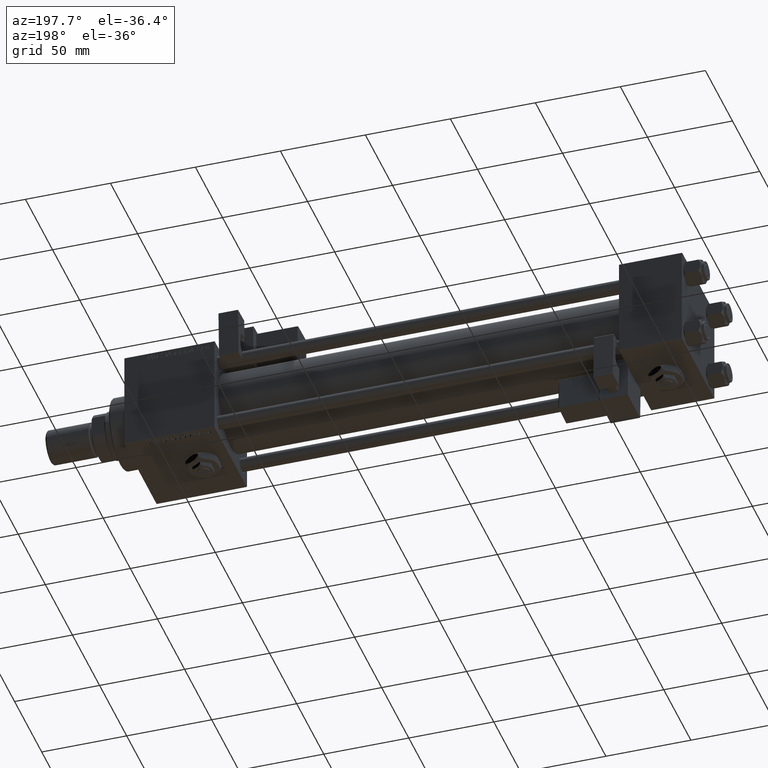
[diagram: clean part render]
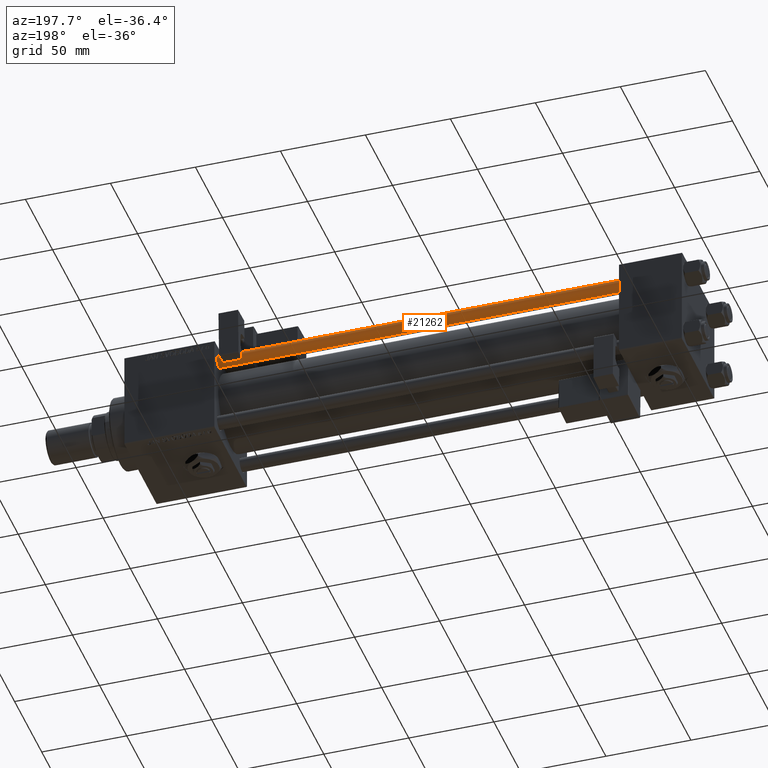
[diagram: same view with one face highlighted and labeled with its STEP entity id]
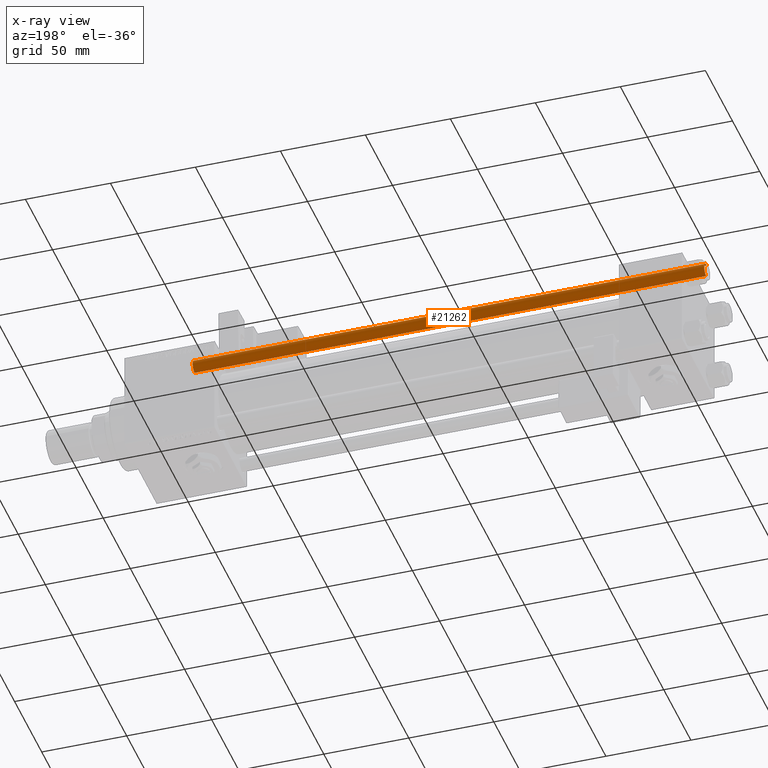
[diagram: x-ray of the same camera — body ghosted, the highlighted face saturated]
A machine part, auxiliary view. The second image highlights one B-rep face of the part: STEP entity #21262.
The next image is the same camera in x-ray: the body ghosted, the highlighted face saturated — about 0% of this face is hidden behind the body in this view.
In plain terms, the highlighted cylindrical surface (edge-blend (fillet) strip) has radius 4 mm, axis along (-1, 0, 0).
Its self-contained STEP definition (entity closure, byte-faithful):
#837 = DIRECTION ( 'NONE',  ( -0.000000000000000000, -0.000000000000000000, -1.000000000000000000 ) ) ;
#1104 = DIRECTION ( 'NONE',  ( -1.000000000000000000, 0.000000000000000000, 0.000000000000000000 ) ) ;
#2468 = LINE ( 'NONE', #23309, #20043 ) ;
#4235 = CARTESIAN_POINT ( 'NONE',  ( -4.000000000000000000, 0.000000000000000000, 0.5000000000000559552 ) ) ;
#4776 = VERTEX_POINT ( 'NONE', #44739 ) ;
#7074 = VECTOR ( 'NONE', #37292, 1000.000000000000000 ) ;
#8111 = VERTEX_POINT ( 'NONE', #17181 ) ;
#9729 = CYLINDRICAL_SURFACE ( 'NONE', #37737, 4.000000000000000000 ) ;
#14756 = ORIENTED_EDGE ( 'NONE', *, *, #48598, .T. ) ;
#17181 = CARTESIAN_POINT ( 'NONE',  ( 4.000000000000000000, 4.898587196589412829E-16, 0.5000000000000559552 ) ) ;
#20043 = VECTOR ( 'NONE', #40232, 1000.000000000000000 ) ;
#21262 = ADVANCED_FACE ( 'NONE', ( #44409 ), #9729, .T. ) ;
#21586 = ORIENTED_EDGE ( 'NONE', *, *, #37490, .T. ) ;
#23309 = CARTESIAN_POINT ( 'NONE',  ( -4.000000000000000000, 0.000000000000000000, 302.0000000000000000 ) ) ;
#23908 = DIRECTION ( 'NONE',  ( -0.000000000000000000, -0.000000000000000000, 1.000000000000000000 ) ) ;
#26616 = ORIENTED_EDGE ( 'NONE', *, *, #42270, .F. ) ;
#28378 = CARTESIAN_POINT ( 'NONE',  ( 0.000000000000000000, 0.000000000000000000, 301.4999999999999432 ) ) ;
#33130 = LINE ( 'NONE', #50026, #7074 ) ;
#34055 = CIRCLE ( 'NONE', #38482, 4.000000000000000000 ) ;
#34962 = CARTESIAN_POINT ( 'NONE',  ( -4.000000000000000000, 0.000000000000000000, 301.4999999999999432 ) ) ;
#35016 = EDGE_LOOP ( 'NONE', ( #21586, #42730, #14756, #26616 ) ) ;
#36145 = DIRECTION ( 'NONE',  ( 0.000000000000000000, 0.000000000000000000, -1.000000000000000000 ) ) ;
#37292 = DIRECTION ( 'NONE',  ( -0.000000000000000000, -0.000000000000000000, -1.000000000000000000 ) ) ;
#37490 = EDGE_CURVE ( 'NONE', #53433, #4776, #34055, .T. ) ;
#37737 = AXIS2_PLACEMENT_3D ( 'NONE', #38891, #837, #1104 ) ;
#38482 = AXIS2_PLACEMENT_3D ( 'NONE', #28378, #36145, #53073 ) ;
#38891 = CARTESIAN_POINT ( 'NONE',  ( 0.000000000000000000, 0.000000000000000000, 302.0000000000000000 ) ) ;
#38915 = AXIS2_PLACEMENT_3D ( 'NONE', #52767, #23908, #48869 ) ;
#39777 = CIRCLE ( 'NONE', #38915, 4.000000000000000000 ) ;
#40232 = DIRECTION ( 'NONE',  ( -0.000000000000000000, -0.000000000000000000, -1.000000000000000000 ) ) ;
#42270 = EDGE_CURVE ( 'NONE', #53433, #45646, #2468, .T. ) ;
#42730 = ORIENTED_EDGE ( 'NONE', *, *, #54858, .T. ) ;
#44409 = FACE_OUTER_BOUND ( 'NONE', #35016, .T. ) ;
#44739 = CARTESIAN_POINT ( 'NONE',  ( 4.000000000000000000, 4.898587196589412829E-16, 301.4999999999999432 ) ) ;
#45646 = VERTEX_POINT ( 'NONE', #4235 ) ;
#48598 = EDGE_CURVE ( 'NONE', #8111, #45646, #39777, .T. ) ;
#48869 = DIRECTION ( 'NONE',  ( 1.000000000000000000, 0.000000000000000000, 0.000000000000000000 ) ) ;
#50026 = CARTESIAN_POINT ( 'NONE',  ( 4.000000000000000000, 4.898587196589412829E-16, 302.0000000000000000 ) ) ;
#52767 = CARTESIAN_POINT ( 'NONE',  ( 0.000000000000000000, 0.000000000000000000, 0.5000000000000559552 ) ) ;
#53073 = DIRECTION ( 'NONE',  ( 1.000000000000000000, 0.000000000000000000, 0.000000000000000000 ) ) ;
#53433 = VERTEX_POINT ( 'NONE', #34962 ) ;
#54858 = EDGE_CURVE ( 'NONE', #4776, #8111, #33130, .T. ) ;